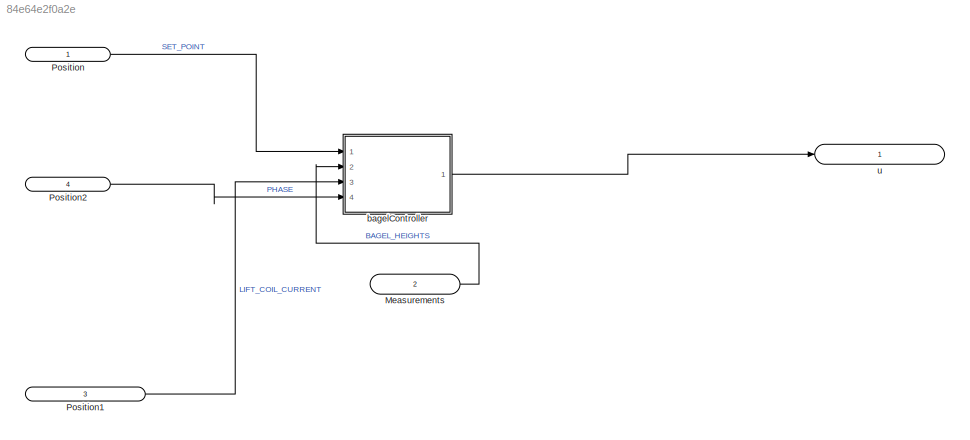
MODEL slx_84e64e2f0a2e
KIND model
CONFIG AbsTol = auto
CONFIG EnableMultiTasking = on
CONFIG FixedStep = 0.01
CONFIG InitFcn = %load A.mat;\n%A = A;\n%load B.mat;\n%B = Expression1;\n%load C.mat;\n%C = C;\n%load D.mat;\n%D = D;\n\n%i = .01;\n%Q = eye(3)*i;\n%N = 0;\n%j = 1000;\n%R = zeros(1, 1)+j;\n\n%load Ad.mat;\n%Ad = Ad;\n%load Bd.mat;\n%Bd = Bd;\n%load Cd.mat;\n%Cd = Cd;\n%load Dd.mat;\n%Dd = Dd;\n\nrun('script1.m');\n%Q = eye(3)*0;\n%R = 5e-07;\n%N = 0;\n%MeasurementOffset = .095;
CONFIG MaxStep = auto
CONFIG MinStep = auto
CONFIG RelTol = 1e-3
CONFIG SampleTimeConstraint = Unconstrained
CONFIG SolverName = FixedStepAuto
CONFIG StartTime = 0.0
CONFIG StopTime = 5
WORKSPACE source: mxarray member
WORKSPACE COIL_MAX_VOLTAGE: Simulink.Parameter (value not decoded)
BLOCK [Inport] Measurements
  IconDisplay = Signal name
  OutDataTypeStr = double
  Port = 2
  PortDimensions = 4
  SampleTime = [0.01,0]
  SamplingMode = Sample based
  SignalType = real
BLOCK [Inport] Position
  IconDisplay = Signal name
  OutDataTypeStr = double
  PortDimensions = 1
  SampleTime = deltat
  SamplingMode = Sample based
  SignalType = real
BLOCK [Inport] Position1
  IconDisplay = Signal name
  OutDataTypeStr = double
  Port = 3
  PortDimensions = 1
  SampleTime = deltat
  SamplingMode = Sample based
  SignalType = real
BLOCK [Inport] Position2
  IconDisplay = Signal name
  OutDataTypeStr = double
  Port = 4
  PortDimensions = 1
  SampleTime = deltat
  SamplingMode = Sample based
  SignalType = real
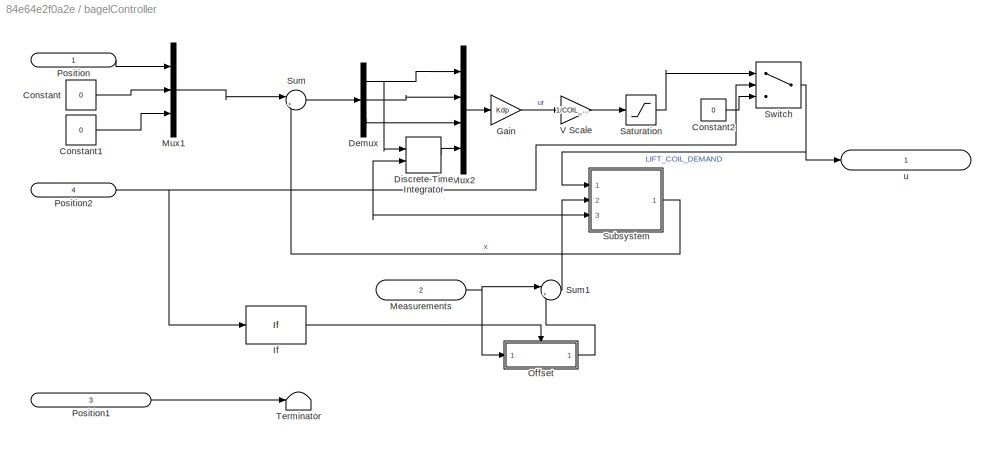
BLOCK [SubSystem] bagelController
  Ports = [4, 1]
  RequestExecContextInheritance = off
BLOCK [Constant] bagelController/Constant
  Value = 0
BLOCK [Constant] bagelController/Constant1
  Value = 0
BLOCK [Constant] bagelController/Constant2
  Value = 0
BLOCK [Demux] bagelController/Demux
  Outputs = 3
  Ports = [1, 3]
BLOCK [DiscreteIntegrator] bagelController/Discrete-Time Integrator
  ExternalReset = rising
  ICPrevOutput = DiscIntNeverNeededParam
  ICPrevScaledInput = DiscIntNeverNeededParam
  InitialConditionSetting = Auto
  Ports = [2, 1]
  SampleTime = -1
BLOCK [Gain] bagelController/Gain
  Gain = Kdp
  Multiplication = Matrix(K*u)
BLOCK [If] bagelController/If
  IfExpression = u1 < 0
  Ports = [1, 1]
  ShowElse = off
BLOCK [Inport] bagelController/Measurements
  IconDisplay = Signal name
  OutDataTypeStr = double
  Port = 2
  PortDimensions = 4
  SampleTime = [0.01,0]
  SamplingMode = Sample based
  SignalType = real
BLOCK [Mux] bagelController/Mux1
  DisplayOption = bar
  Inputs = 3
  Ports = [3, 1]
BLOCK [Mux] bagelController/Mux2
  DisplayOption = bar
  Ports = [4, 1]
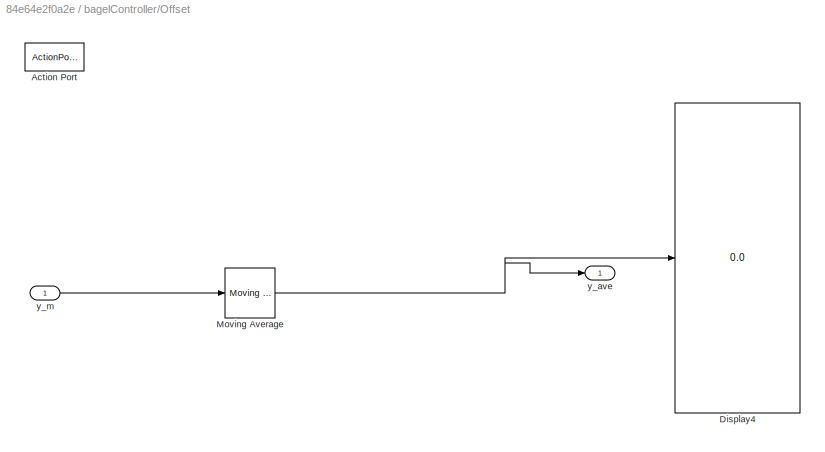
BLOCK [SubSystem] bagelController/Offset
  Ports = [1, 1, 0, 0, 0, 0, 0, 1]
  RequestExecContextInheritance = off
  TreatAsAtomicUnit = on
BLOCK [ActionPort] bagelController/Offset/Action Port
  ActionPortLabel = if(u1 < 0)
  InitializeStates = reset
BLOCK [Display] bagelController/Offset/Display4
  Decimation = 100
  Ports = [1]
BLOCK [Reference] bagelController/Offset/Moving Average  REF=dspstat3/Moving
Average
  Ports = [1, 1]
  SourceBlock = dspstat3/Moving\nAverage
  SourceProductBaseCode = DS
  SourceType = dsp.simulink.MovingAverage
BLOCK [Outport] bagelController/Offset/y_ave
  InitialOutput = zeros(1,1)
  SourceOfInitialOutputValue = Input signal
BLOCK [Inport] bagelController/Offset/y_m
BLOCK [Inport] bagelController/Position
  IconDisplay = Signal name
  OutDataTypeStr = double
  PortDimensions = 1
  SampleTime = deltat
  SamplingMode = Sample based
  SignalType = real
BLOCK [Inport] bagelController/Position1
  IconDisplay = Signal name
  OutDataTypeStr = double
  Port = 3
  PortDimensions = 1
  SampleTime = deltat
  SamplingMode = Sample based
  SignalType = real
BLOCK [Inport] bagelController/Position2
  IconDisplay = Signal name
  OutDataTypeStr = double
  Port = 4
  PortDimensions = 1
  SampleTime = deltat
  SamplingMode = Sample based
  SignalType = real
BLOCK [Saturate] bagelController/Saturation
  LowerLimit = -1
  UpperLimit = 1
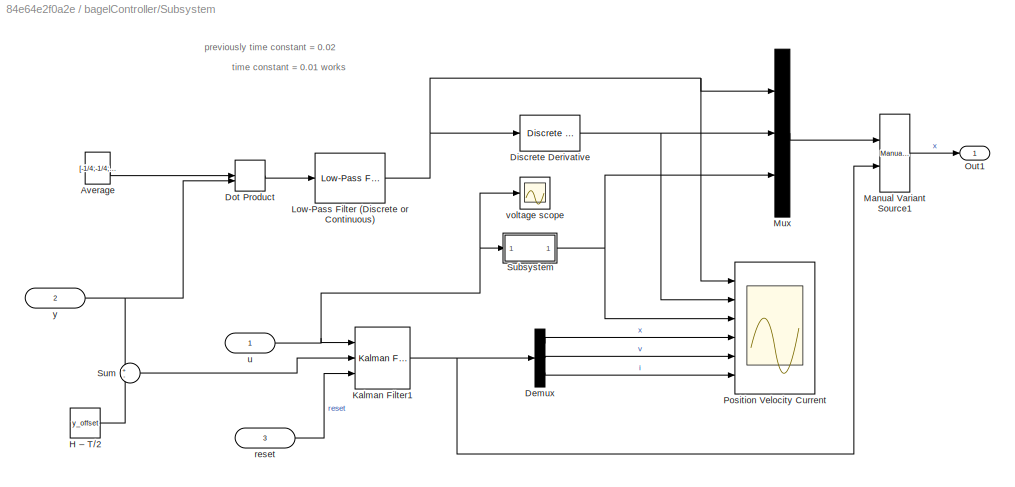
BLOCK [SubSystem] bagelController/Subsystem
  Ports = [3, 1]
  RequestExecContextInheritance = off
BLOCK [Constant] bagelController/Subsystem/Average
  Value = [-1/4;-1/4;1/4;1/4]
BLOCK [Demux] bagelController/Subsystem/Demux
  Outputs = 3
  Ports = [1, 3]
BLOCK [Reference] bagelController/Subsystem/Discrete Derivative  REF=simulink/Discrete/Discrete Derivative
  Ports = [1, 1]
  SourceBlock = simulink/Discrete/Discrete Derivative
  SourceProductBaseCode = SL
  SourceType = Discrete Derivative
BLOCK [DotProduct] bagelController/Subsystem/Dot Product
  OutDataTypeStr = Inherit: Inherit via internal rule
BLOCK [Constant] bagelController/Subsystem/H – T//2
  SampleTime = deltat
  Value = y_offset
BLOCK [Reference] bagelController/Subsystem/Kalman Filter1  REF=ctrlSharedLib/Kalman Filter
  Ports = [3, 1]
  SourceBlock = ctrlSharedLib/Kalman Filter
  SourceProductBaseCode = CT,ID
  SourceType = ctrlKalmanFilter
BLOCK [Reference] bagelController/Subsystem/Low-Pass Filter (Discrete or Continuous)  REF=eeGeneralControl/Low-Pass Filter
(Discrete or Continuous)
  Ports = [1, 1]
  SourceBlock = eeGeneralControl/Low-Pass Filter\n(Discrete or Continuous)
  SourceProductBaseCode = PS
  SourceType = Low-Pass Filter (Discrete or Continuous)
BLOCK [Reference] bagelController/Subsystem/Manual Variant Source1  REF=simulink/Signal
Routing/Manual
Variant Source
  Ports = [2, 1]
  SourceBlock = simulink/Signal\nRouting/Manual\nVariant Source
  SourceProductBaseCode = SL
  SourceType = ManualVariantSource
BLOCK [Mux] bagelController/Subsystem/Mux
  DisplayOption = bar
  Inputs = 3
  Ports = [3, 1]
BLOCK [Outport] bagelController/Subsystem/Out1
  IconDisplay = Signal name
BLOCK [Scope] bagelController/Subsystem/Position Velocity Current
  Floating = off
  NumInputPorts = 6
  Ports = [6]
  ScopeSpecificationString = Simulink.scopes.TimeScopeBlockCfg('CurrentConfiguration', extmgr.ConfigurationSet(extmgr.Configuration('Core','General UI',true),extmgr.Configuration('Core','Source UI',true),extmgr.Configuration('Sources','WiredSimulink',true,'DataLoggingVariableName','ScopeData1'),extmgr.Configuration('Visuals','Time Domain',true,'SerializedDisplays',{struct('MinYLimReal','-0.01443','MaxYLimReal','0.00323','YLab...<+4973ch>
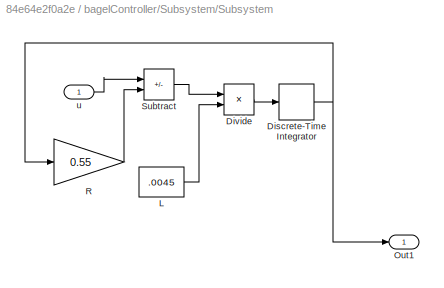
BLOCK [SubSystem] bagelController/Subsystem/Subsystem
  Ports = [1, 1]
  RequestExecContextInheritance = off
BLOCK [DiscreteIntegrator] bagelController/Subsystem/Subsystem/Discrete-Time Integrator
  ICPrevOutput = DiscIntNeverNeededParam
  ICPrevScaledInput = DiscIntNeverNeededParam
  InitialConditionSetting = Auto
  Ports = [1, 1]
  SampleTime = deltat
BLOCK [Product] bagelController/Subsystem/Subsystem/Divide
  Inputs = */
  Ports = [2, 1]
BLOCK [Constant] bagelController/Subsystem/Subsystem/L
  SampleTime = deltat
  Value = .0045
BLOCK [Outport] bagelController/Subsystem/Subsystem/Out1
BLOCK [Gain] bagelController/Subsystem/Subsystem/R
  Gain = 0.55
BLOCK [Sum] bagelController/Subsystem/Subsystem/Subtract
  IconShape = rectangular
  Inputs = +-
  Ports = [2, 1]
BLOCK [Inport] bagelController/Subsystem/Subsystem/u
BLOCK [Sum] bagelController/Subsystem/Sum
  Inputs = +-
  Ports = [2, 1]
BLOCK [Inport] bagelController/Subsystem/reset
  Port = 3
  SampleTime = deltat
BLOCK [Inport] bagelController/Subsystem/u
  SampleTime = deltat
BLOCK [Scope] bagelController/Subsystem/voltage scope
  Floating = off
  NumInputPorts = 1
  Ports = [1]
  ScopeSpecificationString = Simulink.scopes.TimeScopeBlockCfg('CurrentConfiguration', extmgr.ConfigurationSet(extmgr.Configuration('Core','General UI',true),extmgr.Configuration('Core','Source UI',true),extmgr.Configuration('Sources','WiredSimulink',true,'DataLoggingVariableName','ScopeData1'),extmgr.Configuration('Visuals','Time Domain',true,'SerializedDisplays',{struct('MinYLimReal','-14.38596','MaxYLimReal','9.47362','YLa...<+1418ch>
BLOCK [Inport] bagelController/Subsystem/y
  Port = 2
  SampleTime = deltat
BLOCK [Sum] bagelController/Sum
  Inputs = |+-
  NameLocation = top
  Ports = [2, 1]
BLOCK [Sum] bagelController/Sum1
  Inputs = |+-
  Ports = [2, 1]
BLOCK [Switch] bagelController/Switch
  Criteria = u2 > Threshold
  InputSameDT = off
  SaturateOnIntegerOverflow = off
BLOCK [Terminator] bagelController/Terminator
BLOCK [Gain] bagelController/V Scale
  Gain = 1/COIL_MAX_VOLTAGE
  Multiplication = Matrix(K*u)
BLOCK [Outport] bagelController/u
  IconDisplay = Signal name
  OutDataTypeStr = double
  PortDimensions = 1
  SampleTime = [0.01,0]
  SamplingMode = Sample based
  SignalType = real
BLOCK [Outport] u
  IconDisplay = Signal name
  OutDataTypeStr = double
  PortDimensions = 1
  SampleTime = [0.01,0]
  SamplingMode = Sample based
  SignalType = real
ANNOTATION bagelController/Subsystem: previously time constant = 0.02
ANNOTATION bagelController/Subsystem: time constant = 0.01 works
LINE Measurements:1 -> bagelController:2
LINE Position1:1 -> bagelController:3
LINE Position2:1 -> bagelController:4
LINE Position:1 -> bagelController:1
LINE bagelController/Constant1:1 -> bagelController/Mux1:3
LINE bagelController/Constant2:1 -> bagelController/Switch:3
LINE bagelController/Constant:1 -> bagelController/Mux1:2
NET bagelController/Demux:1 -> bagelController/Discrete-Time Integrator:1, bagelController/Mux2:1
LINE bagelController/Demux:2 -> bagelController/Mux2:2
LINE bagelController/Demux:3 -> bagelController/Mux2:3
LINE bagelController/Discrete-Time Integrator:1 -> bagelController/Mux2:4
LINE bagelController/Gain:1 -> bagelController/V Scale:1
LINE bagelController/If:1 -> bagelController/Offset:ifaction
NET bagelController/Measurements:1 -> bagelController/Offset:1, bagelController/Sum1:1
LINE bagelController/Mux1:1 -> bagelController/Sum:1
LINE bagelController/Mux2:1 -> bagelController/Gain:1
NET bagelController/Offset/Moving Average:1 -> bagelController/Offset/Display4:1, bagelController/Offset/y_ave:1
LINE bagelController/Offset/y_m:1 -> bagelController/Offset/Moving Average:1
LINE bagelController/Offset:1 -> bagelController/Sum1:2
LINE bagelController/Position1:1 -> bagelController/Terminator:1
NET bagelController/Position2:1 -> bagelController/Discrete-Time Integrator:2, bagelController/If:1, bagelController/Subsystem:3, bagelController/Switch:2
LINE bagelController/Position:1 -> bagelController/Mux1:1
LINE bagelController/Saturation:1 -> bagelController/Switch:1
LINE bagelController/Subsystem/Average:1 -> bagelController/Subsystem/Dot Product:1
LINE bagelController/Subsystem/Demux:1 -> bagelController/Subsystem/Position Velocity Current:4
LINE bagelController/Subsystem/Demux:2 -> bagelController/Subsystem/Position Velocity Current:5
LINE bagelController/Subsystem/Demux:3 -> bagelController/Subsystem/Position Velocity Current:6
NET bagelController/Subsystem/Discrete Derivative:1 -> bagelController/Subsystem/Mux:2, bagelController/Subsystem/Position Velocity Current:2
LINE bagelController/Subsystem/Dot Product:1 -> bagelController/Subsystem/Low-Pass Filter (Discrete or Continuous):1
LINE bagelController/Subsystem/H – T//2:1 -> bagelController/Subsystem/Sum:2
NET bagelController/Subsystem/Kalman Filter1:1 -> bagelController/Subsystem/Demux:1, bagelController/Subsystem/Manual Variant Source1:2
NET bagelController/Subsystem/Low-Pass Filter (Discrete or Continuous):1 -> bagelController/Subsystem/Discrete Derivative:1, bagelController/Subsystem/Mux:1, bagelController/Subsystem/Position Velocity Current:1
LINE bagelController/Subsystem/Manual Variant Source1:1 -> bagelController/Subsystem/Out1:1
LINE bagelController/Subsystem/Mux:1 -> bagelController/Subsystem/Manual Variant Source1:1
NET bagelController/Subsystem/Subsystem/Discrete-Time Integrator:1 -> bagelController/Subsystem/Subsystem/Out1:1, bagelController/Subsystem/Subsystem/R:1
LINE bagelController/Subsystem/Subsystem/Divide:1 -> bagelController/Subsystem/Subsystem/Discrete-Time Integrator:1
LINE bagelController/Subsystem/Subsystem/L:1 -> bagelController/Subsystem/Subsystem/Divide:2
LINE bagelController/Subsystem/Subsystem/R:1 -> bagelController/Subsystem/Subsystem/Subtract:2
LINE bagelController/Subsystem/Subsystem/Subtract:1 -> bagelController/Subsystem/Subsystem/Divide:1
LINE bagelController/Subsystem/Subsystem/u:1 -> bagelController/Subsystem/Subsystem/Subtract:1
NET bagelController/Subsystem/Subsystem:1 -> bagelController/Subsystem/Mux:3, bagelController/Subsystem/Position Velocity Current:3
LINE bagelController/Subsystem/Sum:1 -> bagelController/Subsystem/Kalman Filter1:2
LINE bagelController/Subsystem/reset:1 -> bagelController/Subsystem/Kalman Filter1:3
NET bagelController/Subsystem/u:1 -> bagelController/Subsystem/Kalman Filter1:1, bagelController/Subsystem/Subsystem:1, bagelController/Subsystem/voltage scope:1
NET bagelController/Subsystem/y:1 -> bagelController/Subsystem/Dot Product:2, bagelController/Subsystem/Sum:1
LINE bagelController/Subsystem:1 -> bagelController/Sum:2
LINE bagelController/Sum1:1 -> bagelController/Subsystem:2
LINE bagelController/Sum:1 -> bagelController/Demux:1
NET bagelController/Switch:1 -> bagelController/Subsystem:1, bagelController/u:1
LINE bagelController/V Scale:1 -> bagelController/Saturation:1
LINE bagelController:1 -> u:1
note: NET lines group one-source signal fan-out (src -> all destinations, sorted); 1:1 wires keep LINE
